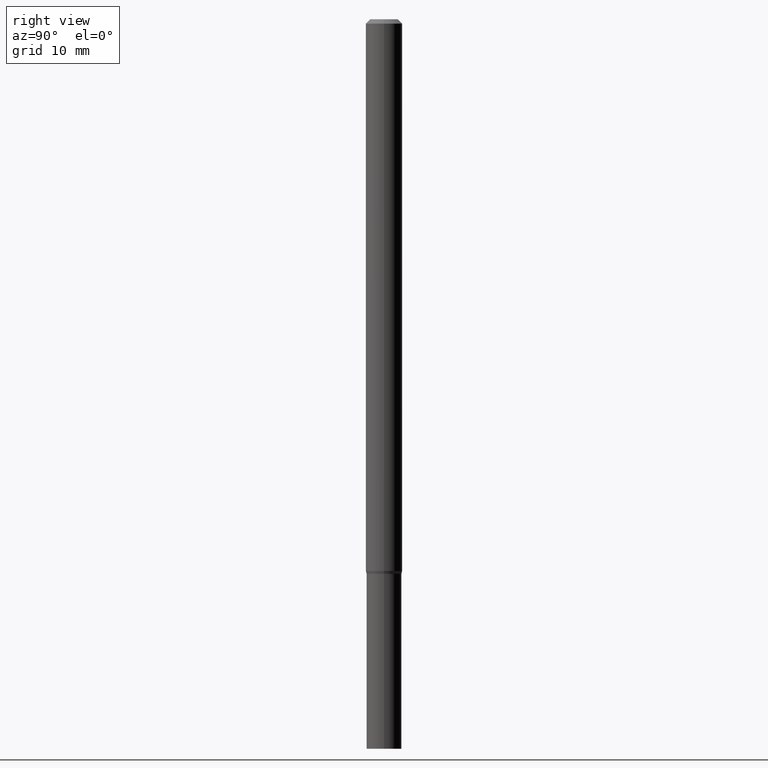
[diagram: clean part render]
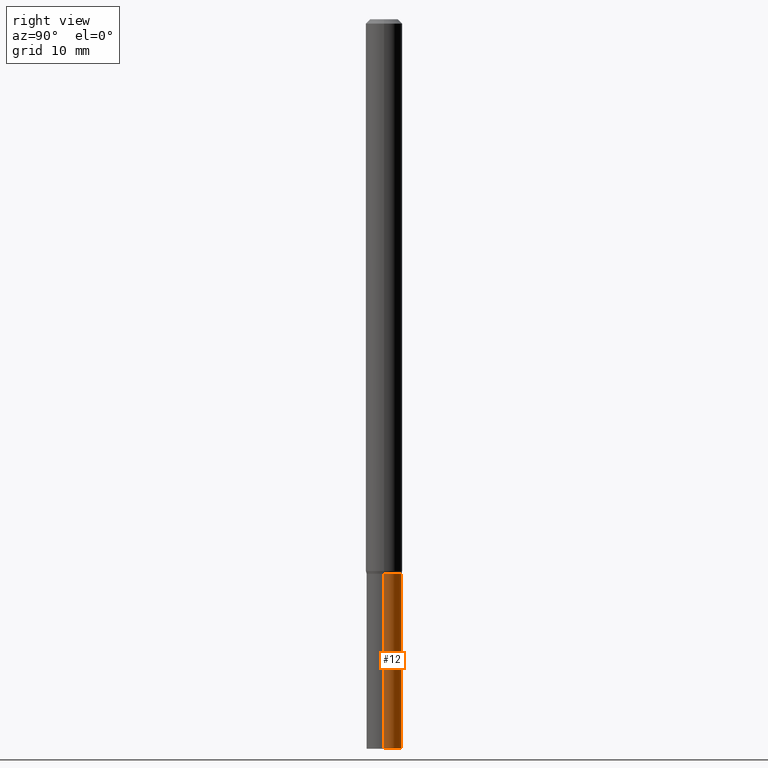
[diagram: same view with one face highlighted and labeled with its STEP entity id]
A machine part, right view. The second image highlights one B-rep face of the part: STEP entity #12.
In plain terms, the highlighted cylindrical surface (edge-blend (fillet) strip) has radius 1.524 mm, axis along (-0, 0, 1).
Its self-contained STEP definition (entity closure, byte-faithful):
#10 = CYLINDRICAL_SURFACE ( 'NONE', #193, 0.05999999999999999778 ) ;
#12 = ADVANCED_FACE ( 'NONE', ( #443 ), #10, .T. ) ;
#15 = ORIENTED_EDGE ( 'NONE', *, *, #114, .F. ) ;
#21 = CARTESIAN_POINT ( 'NONE',  ( 4.646390731751759982E-29, -6.633814543801977041E-15, -1.900000000000000133 ) ) ;
#22 = CARTESIAN_POINT ( 'NONE',  ( 0.05999999999999999778, -4.189777606611760421E-16, 2.925706065477561756E-30 ) ) ;
#39 = ORIENTED_EDGE ( 'NONE', *, *, #463, .F. ) ;
#45 = VERTEX_POINT ( 'NONE', #369 ) ;
#91 = CARTESIAN_POINT ( 'NONE',  ( -0.05999999999999999778, 4.263256414560600957E-16, -2.951361054152943413E-30 ) ) ;
#107 = CARTESIAN_POINT ( 'NONE',  ( 0.000000000000000000, 0.000000000000000000, 0.000000000000000000 ) ) ;
#114 = EDGE_CURVE ( 'NONE', #126, #223, #222, .T. ) ;
#117 = AXIS2_PLACEMENT_3D ( 'NONE', #21, #194, #342 ) ;
#126 = VERTEX_POINT ( 'NONE', #307 ) ;
#133 = CIRCLE ( 'NONE', #117, 0.05999999999999999778 ) ;
#140 = ORIENTED_EDGE ( 'NONE', *, *, #346, .T. ) ;
#164 = DIRECTION ( 'NONE',  ( -2.445468806185136877E-29, 3.491481338843145188E-15, 1.000000000000000000 ) ) ;
#176 = EDGE_LOOP ( 'NONE', ( #339, #140, #39, #15 ) ) ;
#193 = AXIS2_PLACEMENT_3D ( 'NONE', #107, #252, #250 ) ;
#194 = DIRECTION ( 'NONE',  ( -2.445468806185136597E-29, 3.491481338843145583E-15, 1.000000000000000000 ) ) ;
#222 = LINE ( 'NONE', #22, #238 ) ;
#223 = VERTEX_POINT ( 'NONE', #336 ) ;
#238 = VECTOR ( 'NONE', #164, 39.37007874015748143 ) ;
#240 = CARTESIAN_POINT ( 'NONE',  ( 6.113672015462842613E-29, -8.728703347107864943E-15, -2.500000000000000000 ) ) ;
#250 = DIRECTION ( 'NONE',  ( 1.000000000000000000, -6.982962677686267499E-15, 4.876176775795936353E-29 ) ) ;
#252 = DIRECTION ( 'NONE',  ( -2.445468806185136597E-29, 3.491481338843145583E-15, 1.000000000000000000 ) ) ;
#276 = DIRECTION ( 'NONE',  ( -2.445468806185136597E-29, 3.491481338843145583E-15, 1.000000000000000000 ) ) ;
#300 = EDGE_CURVE ( 'NONE', #126, #45, #317, .T. ) ;
#301 = AXIS2_PLACEMENT_3D ( 'NONE', #240, #276, #462 ) ;
#307 = CARTESIAN_POINT ( 'NONE',  ( 0.05999999999999999778, -9.147681107769039999E-15, -2.500000000000000000 ) ) ;
#312 = DIRECTION ( 'NONE',  ( -2.445468806185136877E-29, 3.491481338843145188E-15, 1.000000000000000000 ) ) ;
#317 = CIRCLE ( 'NONE', #301, 0.05999999999999999778 ) ;
#336 = CARTESIAN_POINT ( 'NONE',  ( 0.05999999999999999778, -7.052792304463153675E-15, -1.900000000000000133 ) ) ;
#339 = ORIENTED_EDGE ( 'NONE', *, *, #300, .T. ) ;
#342 = DIRECTION ( 'NONE',  ( 1.000000000000000000, -6.982962677686268288E-15, 0.000000000000000000 ) ) ;
#346 = EDGE_CURVE ( 'NONE', #45, #436, #358, .T. ) ;
#358 = LINE ( 'NONE', #91, #360 ) ;
#360 = VECTOR ( 'NONE', #312, 39.37007874015748143 ) ;
#369 = CARTESIAN_POINT ( 'NONE',  ( -0.05999999999999999778, -7.254933303998859713E-15, -2.500000000000000000 ) ) ;
#382 = CARTESIAN_POINT ( 'NONE',  ( -0.05999999999999999778, -7.254933303998859713E-15, -1.900000000000000133 ) ) ;
#436 = VERTEX_POINT ( 'NONE', #382 ) ;
#443 = FACE_OUTER_BOUND ( 'NONE', #176, .T. ) ;
#462 = DIRECTION ( 'NONE',  ( 1.000000000000000000, -6.982962677686251722E-15, 0.000000000000000000 ) ) ;
#463 = EDGE_CURVE ( 'NONE', #223, #436, #133, .T. ) ;